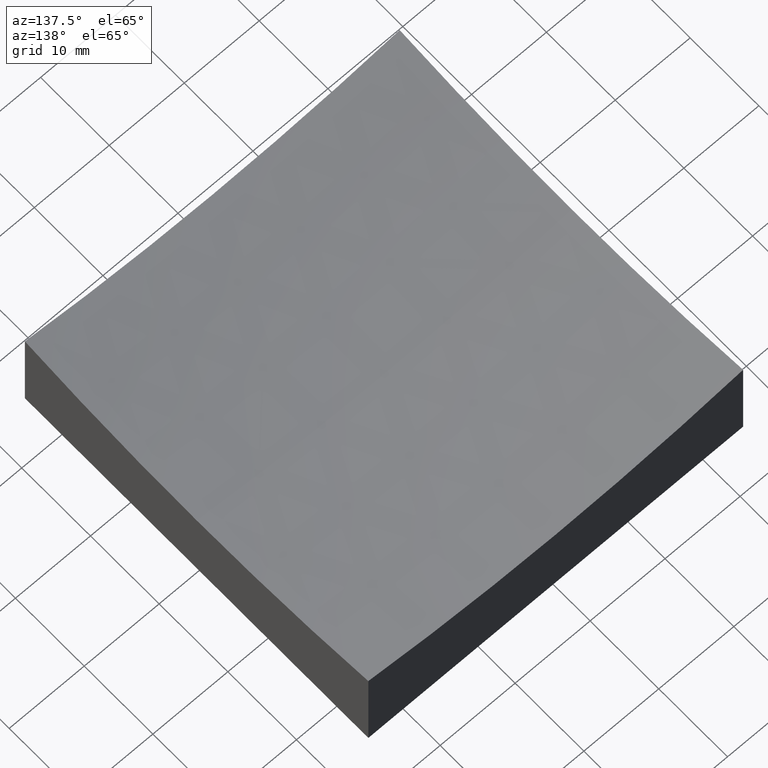
[diagram: clean part render]
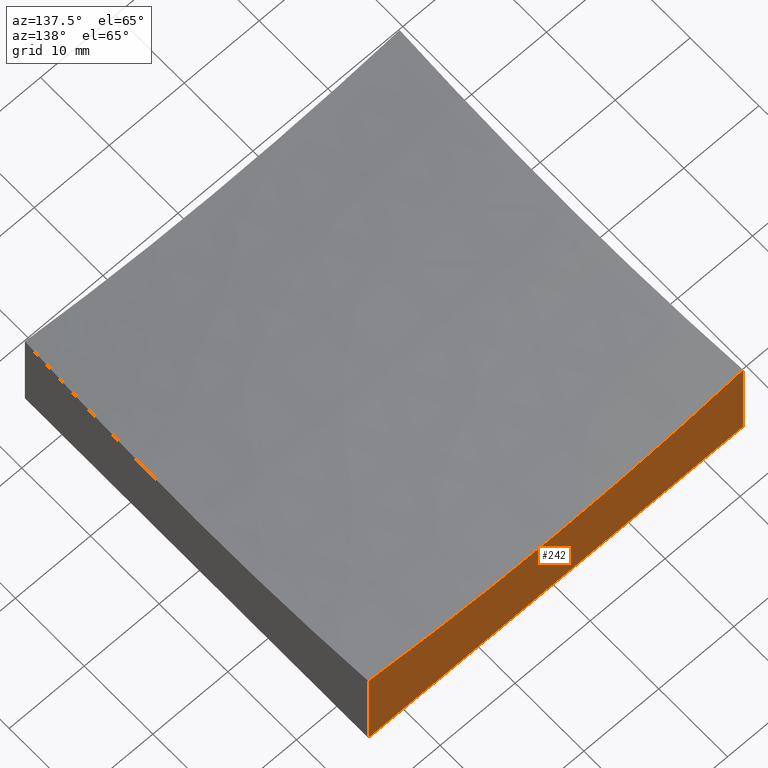
[diagram: same view with one face highlighted and labeled with its STEP entity id]
A machine part, auxiliary view. The second image highlights one B-rep face of the part: STEP entity #242.
In plain terms, the highlighted planar face has unit normal (0, 1, 0).
Its self-contained STEP definition (entity closure, byte-faithful):
#9 = VERTEX_POINT ( 'NONE', #13 ) ;
#11 = DIRECTION ( 'NONE',  ( -0.0000000000000000000, -0.0000000000000000000, -1.000000000000000000 ) ) ;
#13 = CARTESIAN_POINT ( 'NONE',  ( 24.99999999999999645, 24.99999999999999645, 13.22620262886753295 ) ) ;
#21 = CARTESIAN_POINT ( 'NONE',  ( -25.00000000000000355, 24.99999999999999645, 50.00000000000000000 ) ) ;
#28 = LINE ( 'NONE', #186, #185 ) ;
#31 = DIRECTION ( 'NONE',  ( -0.0000000000000000000, -0.0000000000000000000, -1.000000000000000000 ) ) ;
#33 = ORIENTED_EDGE ( 'NONE', *, *, #120, .F. ) ;
#40 = PLANE ( 'NONE',  #65 ) ;
#41 = DIRECTION ( 'NONE',  ( 0.0000000000000000000, 0.0000000000000000000, 1.000000000000000000 ) ) ;
#42 = CARTESIAN_POINT ( 'NONE',  ( 24.99999999999999645, 24.99999999999999645, 0.0000000000000000000 ) ) ;
#47 = EDGE_CURVE ( 'NONE', #145, #225, #169, .T. ) ;
#52 = CARTESIAN_POINT ( 'NONE',  ( -25.00000000000000355, 24.99999999999999645, 50.00000000000000000 ) ) ;
#60 = CARTESIAN_POINT ( 'NONE',  ( 1.947188410644291696E-14, 24.99999999999999645, 159.0000000000000000 ) ) ;
#65 = AXIS2_PLACEMENT_3D ( 'NONE', #21, #219, #177 ) ;
#78 = CIRCLE ( 'NONE', #83, 147.9019945774903420 ) ;
#83 = AXIS2_PLACEMENT_3D ( 'NONE', #60, #136, #41 ) ;
#95 = EDGE_CURVE ( 'NONE', #9, #151, #28, .T. ) ;
#96 = FACE_OUTER_BOUND ( 'NONE', #245, .T. ) ;
#104 = ORIENTED_EDGE ( 'NONE', *, *, #95, .T. ) ;
#120 = EDGE_CURVE ( 'NONE', #225, #151, #138, .T. ) ;
#126 = ORIENTED_EDGE ( 'NONE', *, *, #133, .F. ) ;
#133 = EDGE_CURVE ( 'NONE', #9, #145, #78, .T. ) ;
#136 = DIRECTION ( 'NONE',  ( 0.0000000000000000000, 1.000000000000000000, 0.0000000000000000000 ) ) ;
#138 = LINE ( 'NONE', #180, #236 ) ;
#145 = VERTEX_POINT ( 'NONE', #155 ) ;
#151 = VERTEX_POINT ( 'NONE', #42 ) ;
#155 = CARTESIAN_POINT ( 'NONE',  ( -25.00000000000000711, 24.99999999999999645, 13.22620262886753295 ) ) ;
#165 = ORIENTED_EDGE ( 'NONE', *, *, #47, .F. ) ;
#169 = LINE ( 'NONE', #52, #216 ) ;
#177 = DIRECTION ( 'NONE',  ( 0.0000000000000000000, -0.0000000000000000000, 1.000000000000000000 ) ) ;
#180 = CARTESIAN_POINT ( 'NONE',  ( -25.00000000000000355, 24.99999999999999645, 0.0000000000000000000 ) ) ;
#185 = VECTOR ( 'NONE', #11, 1000.000000000000000 ) ;
#186 = CARTESIAN_POINT ( 'NONE',  ( 24.99999999999999645, 24.99999999999999645, 50.00000000000000000 ) ) ;
#198 = DIRECTION ( 'NONE',  ( 1.000000000000000000, 0.0000000000000000000, 0.0000000000000000000 ) ) ;
#216 = VECTOR ( 'NONE', #31, 1000.000000000000000 ) ;
#219 = DIRECTION ( 'NONE',  ( 0.0000000000000000000, 1.000000000000000000, 0.0000000000000000000 ) ) ;
#225 = VERTEX_POINT ( 'NONE', #235 ) ;
#235 = CARTESIAN_POINT ( 'NONE',  ( -25.00000000000000355, 24.99999999999999645, 0.0000000000000000000 ) ) ;
#236 = VECTOR ( 'NONE', #198, 1000.000000000000000 ) ;
#242 = ADVANCED_FACE ( 'NONE', ( #96 ), #40, .T. ) ;
#245 = EDGE_LOOP ( 'NONE', ( #126, #104, #33, #165 ) ) ;